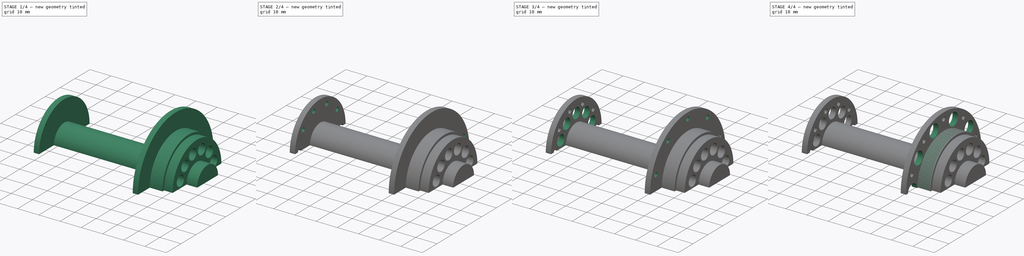
[diagram: build sequence overview — one tinted view per stage of 4, left to right]
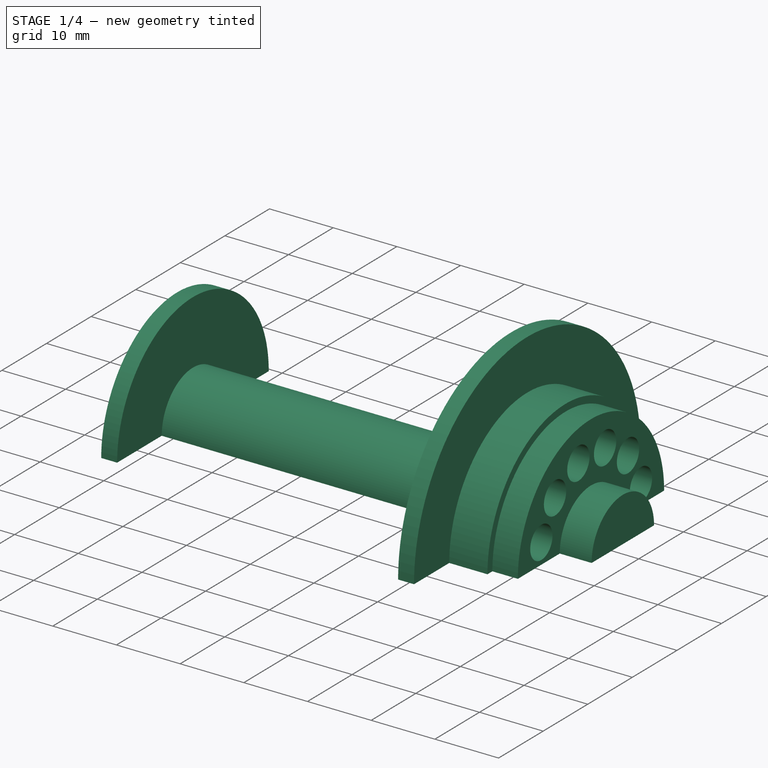
[diagram: stage 1 of 4 — iso view after this stage's code; geometry added in this stage tinted green]
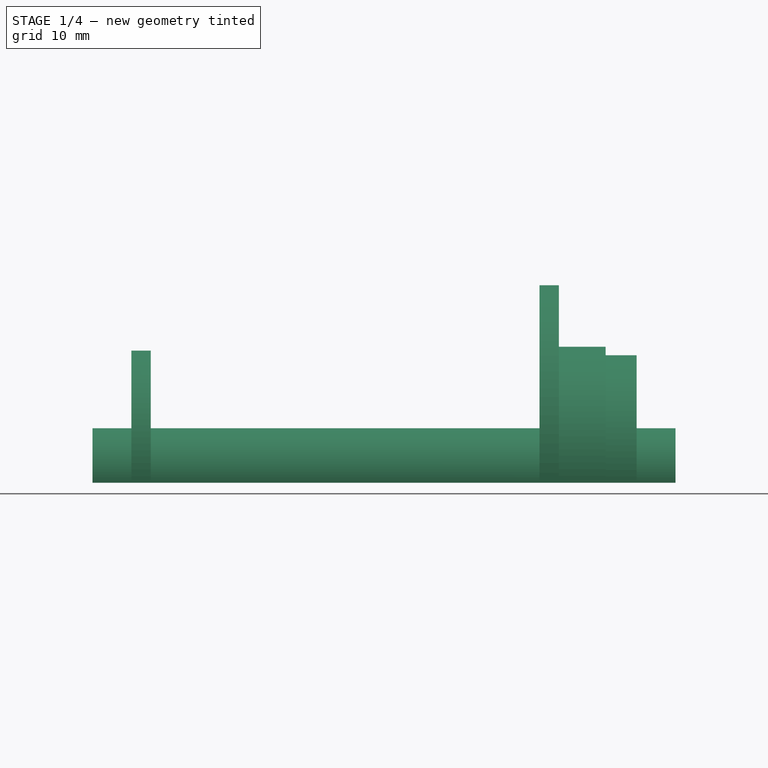
[diagram: stage 1 of 4 — front view after this stage's code; geometry added in this stage tinted green]
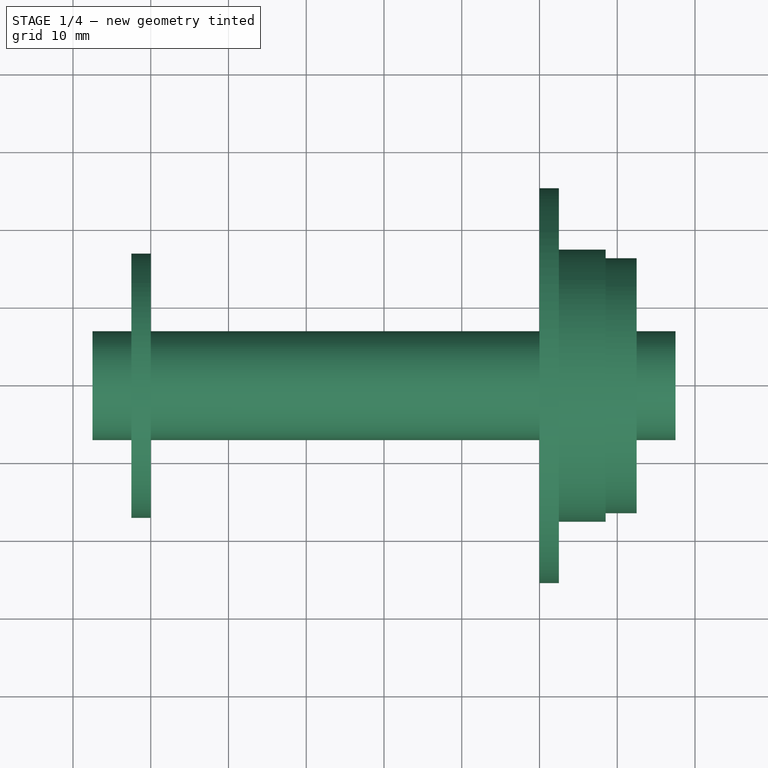
[diagram: stage 1 of 4 — top view after this stage's code; geometry added in this stage tinted green]
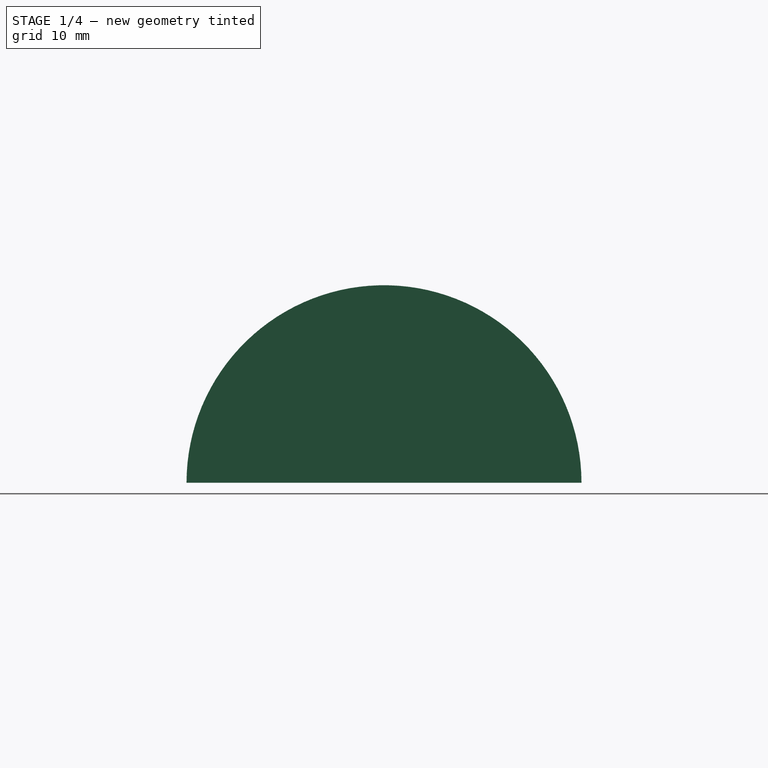
[diagram: stage 1 of 4 — right view after this stage's code; geometry added in this stage tinted green]
FCSTD DOCUMENT  (FreeCAD 0.16R)
Label: 75mmFixielite
License: All rights reserved
LicenseURL: http://en.wikipedia.org/wiki/All_rights_reserved
objects: Sketcher::SketchObject×7, PartDesign::Pocket×5, PartDesign::PolarPattern×5, PartDesign::Revolution×1, PartDesign::Groove×1, PartDesign::LinearPattern×1
note: 27 computed .brp shape members not serialized (recipe doc carries the construction recipe); baked Part::Feature solids carry a one-line shape summary decoded from their .brp

FEATURE [Sketcher::SketchObject] Sketch
  sketch-geometry (18):
    g0: LineSegment [constr] StartX=37.5 StartY=0 StartZ=0 EndX=37.5 EndY=-10 EndZ=0
    g1: LineSegment [constr] StartX=-37.5 StartY=0 StartZ=0 EndX=-37.5 EndY=-10 EndZ=0
    g2: LineSegment StartX=-37.5 StartY=0 StartZ=0 EndX=-37.5 EndY=7 EndZ=0
    g3: LineSegment StartX=-37.5 StartY=7 StartZ=0 EndX=-32.5 EndY=7 EndZ=0
    g4: LineSegment StartX=-32.5 StartY=7 StartZ=0 EndX=-32.5 EndY=17 EndZ=0
    g5: LineSegment StartX=-32.5 StartY=17 StartZ=0 EndX=-30 EndY=17 EndZ=0
    g6: LineSegment StartX=-30 StartY=17 StartZ=0 EndX=-30 EndY=7 EndZ=0
    g7: LineSegment StartX=-30 StartY=7 StartZ=0 EndX=20 EndY=7 EndZ=0
    g8: LineSegment StartX=20 StartY=7 StartZ=0 EndX=20 EndY=25.4 EndZ=0
    g9: LineSegment StartX=20 StartY=25.4 StartZ=0 EndX=22.5 EndY=25.4 EndZ=0
    g10: LineSegment StartX=22.5 StartY=25.4 StartZ=0 EndX=22.5 EndY=17.5 EndZ=0
    g11: LineSegment StartX=22.5 StartY=17.5 StartZ=0 EndX=28.5 EndY=17.5 EndZ=0
    g12: LineSegment StartX=28.5 StartY=17.5 StartZ=0 EndX=28.5 EndY=16.4 EndZ=0
    g13: LineSegment StartX=28.5 StartY=16.4 StartZ=0 EndX=32.5 EndY=16.4 EndZ=0
    g14: LineSegment StartX=32.5 StartY=16.4 StartZ=0 EndX=32.5 EndY=7 EndZ=0
    g15: LineSegment StartX=32.5 StartY=7 StartZ=0 EndX=37.5 EndY=7 EndZ=0
    g16: LineSegment StartX=37.5 StartY=7 StartZ=0 EndX=37.5 EndY=0 EndZ=0
    g17: LineSegment StartX=37.5 StartY=0 StartZ=0 EndX=-37.5 EndY=0 EndZ=0
  constraints (54):
    c: Vertical(g0)
    c: Vertical(g1)
    c: Distance(g0,g1) = 75
    c: PointOnObject(g1,g-1)
    c: PointOnObject(g0,g-1)
    c: Symmetric(g0,g1,g-1)
    c: Coincident(g2,g1)
    c: Coincident(g2,g3)
    c: Coincident(g3,g4)
    c: Vertical(g4)
    c: Coincident(g4,g5)
    c: Coincident(g5,g6)
    c: Vertical(g6)
    c: Coincident(g6,g7)
    c: Horizontal(g7)
    c: Coincident(g7,g8)
    c: Vertical(g8)
    c: Coincident(g8,g9)
    c: Coincident(g9,g10)
    c: Vertical(g10)
    c: Coincident(g10,g11)
    c: Horizontal(g11)
    c: Coincident(g11,g12)
    c: Coincident(g12,g13)
    c: Coincident(g13,g14)
    c: Vertical(g14)
    c: Coincident(g14,g15)
    c: Coincident(g15,g16)
    c: Coincident(g16,g0)
    c: Coincident(g16,g17)
    c: Coincident(g17,g1)
    c: Vertical(g2)
    c: Horizontal(g3)
    c: Distance(g3) = 5
    c: Distance(g2) = 7
    c: Distance(g4) = 10
    c: Horizontal(g5)
    c: Distance(g5) = 2.5
    c: DistanceY(g6) = 7
    c: Horizontal(g9)
    c: Distance(g9) = 2.5
    c: DistanceY(g11) = 17.5
    c: Distance(g11) = 6
    c: Vertical(g12)
    c: Horizontal(g13)
    c: DistanceY(g12) = 16.4
    c: Distance(g13) = 4
    c: Horizontal(g15)
    c: Distance(g15) = 5
    c: Vertical(g16)
    c: Distance(g1) = 10
    c: Distance(g0) = 10
    c: DistanceY(g8) = 25.4
    c: Distance(g16) = 7
FEATURE [PartDesign::Revolution] Revolution
  Angle = 180
  Axis = (1,0,0)
  Base = (0,0,0)
  ReferenceAxis = -> Sketch [H_Axis]
  Sketch = -> Sketch
FEATURE [Sketcher::SketchObject] Sketch001
  Placement = pos=(32.5,0,0) rot=(0.57735,0.57735,0.57735;2.0944rad)
  Support = -> Revolution [Face13]
  sketch-geometry (1):
    g0: Circle CenterX=-11.1288 CenterY=3.16636 CenterZ=0 NormalX=0 NormalY=0 NormalZ=1 Radius=2.5
  constraints (1):
    c: Radius(g0) = 2.5
FEATURE [PartDesign::Pocket] Pocket
  Length = 20
  Sketch = -> Sketch001
  Type = 0
FEATURE [PartDesign::PolarPattern] PolarPattern
  Angle = 150
  Axis = -> Sketch001 [N_Axis]
  Occurrences = 6
  Originals = -> [Pocket]
  Reversed = true
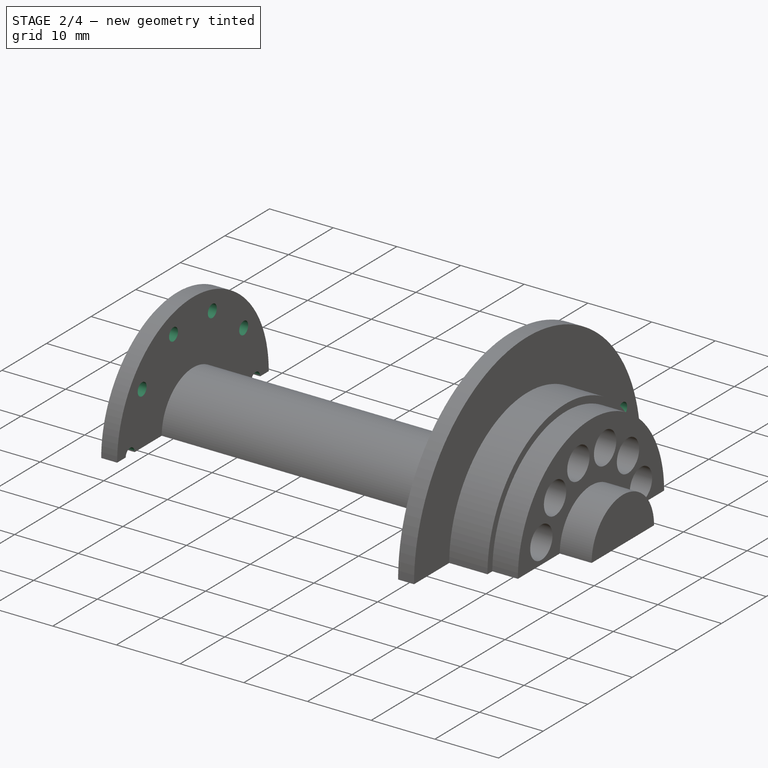
[diagram: stage 2 of 4 — iso view after this stage's code; geometry added in this stage tinted green]
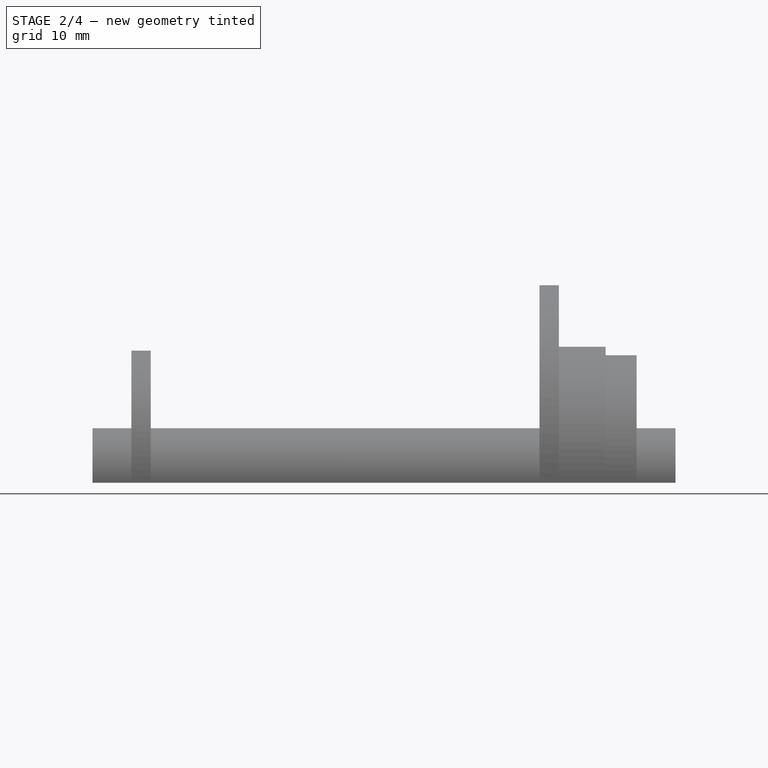
[diagram: stage 2 of 4 — front view after this stage's code; geometry added in this stage tinted green]
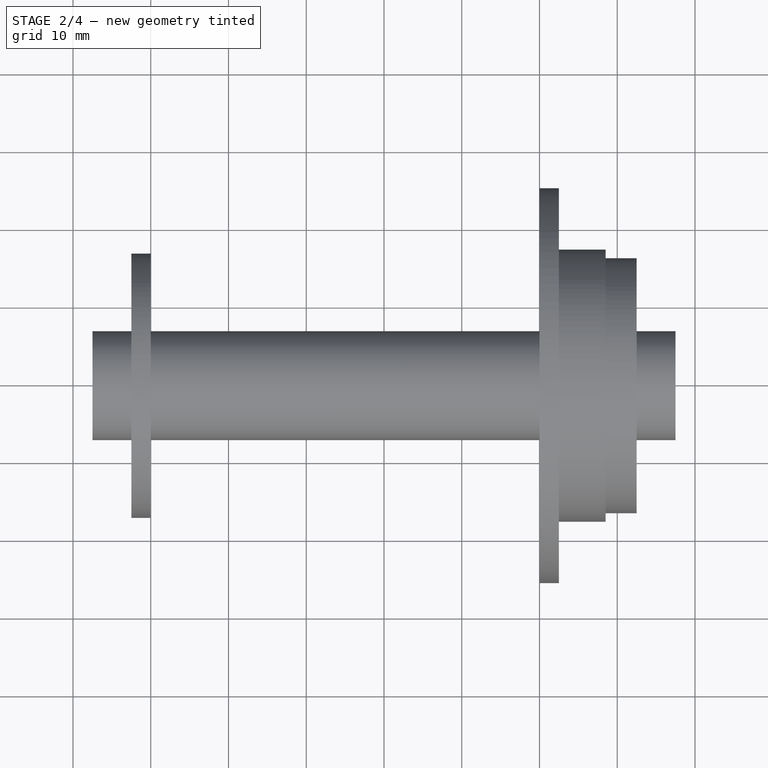
[diagram: stage 2 of 4 — top view after this stage's code; geometry added in this stage tinted green]
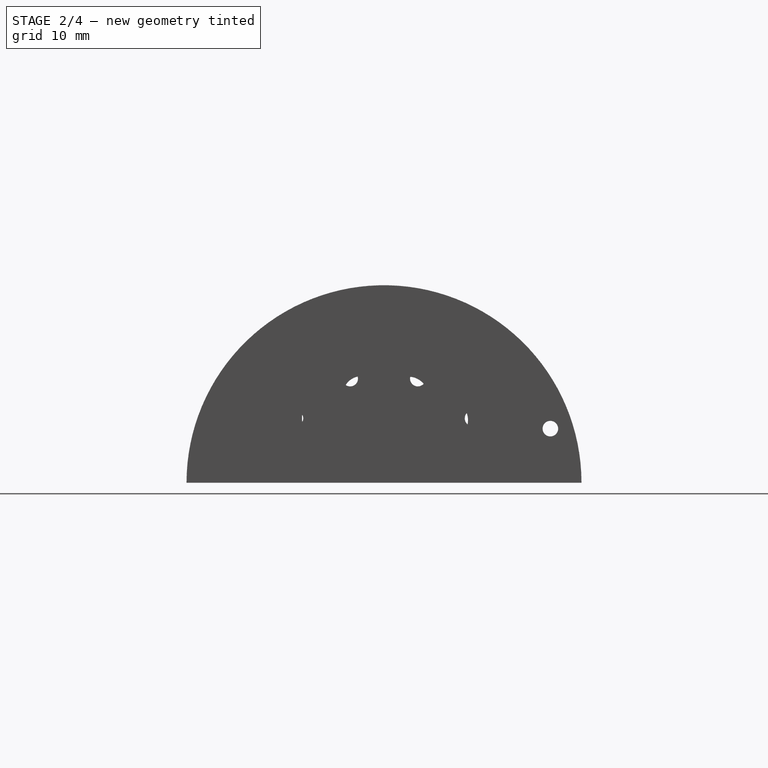
[diagram: stage 2 of 4 — right view after this stage's code; geometry added in this stage tinted green]
FEATURE [Sketcher::SketchObject] Sketch002
  Placement = pos=(-32.5,0,0) rot=(0.57735,-0.57735,-0.57735;2.0944rad)
  Support = -> PolarPattern [Face5]
  sketch-geometry (1):
    g0: Circle CenterX=-14.0773 CenterY=0 CenterZ=0 NormalX=0 NormalY=0 NormalZ=1 Radius=1
  constraints (2):
    c: Radius(g0) = 1
    c: PointOnObject(g0,g-1)
FEATURE [PartDesign::Pocket] Pocket001
  Length = 5
  Sketch = -> Sketch002
  Type = 0
FEATURE [PartDesign::PolarPattern] PolarPattern001
  Angle = 360
  Axis = -> Sketch002 [N_Axis]
  Occurrences = 10
  Originals = -> [Pocket001]
FEATURE [Sketcher::SketchObject] Sketch003
  Placement = pos=(20,0,0) rot=(0.57735,-0.57735,-0.57735;2.0944rad)
  Support = -> PolarPattern001 [Face14]
  sketch-geometry (2):
    g0: Circle CenterX=-21.3988 CenterY=6.95288 CenterZ=0 NormalX=0 NormalY=0 NormalZ=1 Radius=1
    g1: LineSegment [constr] StartX=-21.3988 StartY=6.95288 StartZ=0 EndX=0 EndY=0 EndZ=0
  constraints (5):
    c: Radius(g0) = 1
    c: Coincident(g1,g0)
    c: Angle(g1) = -0.314159
    c: Coincident(g1,g-1)
    c: Distance(g1) = 22.5
FEATURE [PartDesign::Pocket] Pocket002
  Length = 5
  Sketch = -> Sketch003
  Type = 0
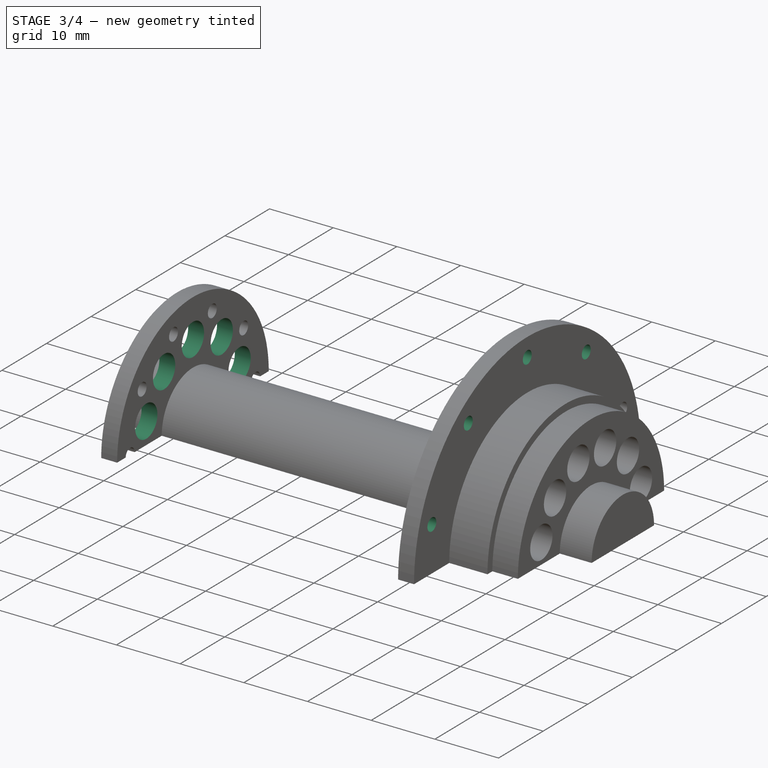
[diagram: stage 3 of 4 — iso view after this stage's code; geometry added in this stage tinted green]
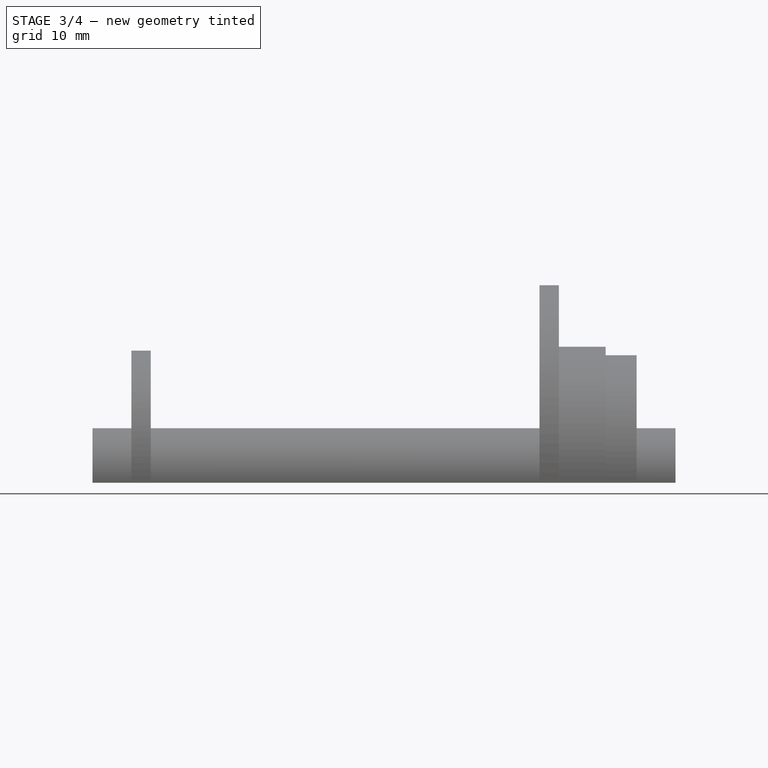
[diagram: stage 3 of 4 — front view after this stage's code; geometry added in this stage tinted green]
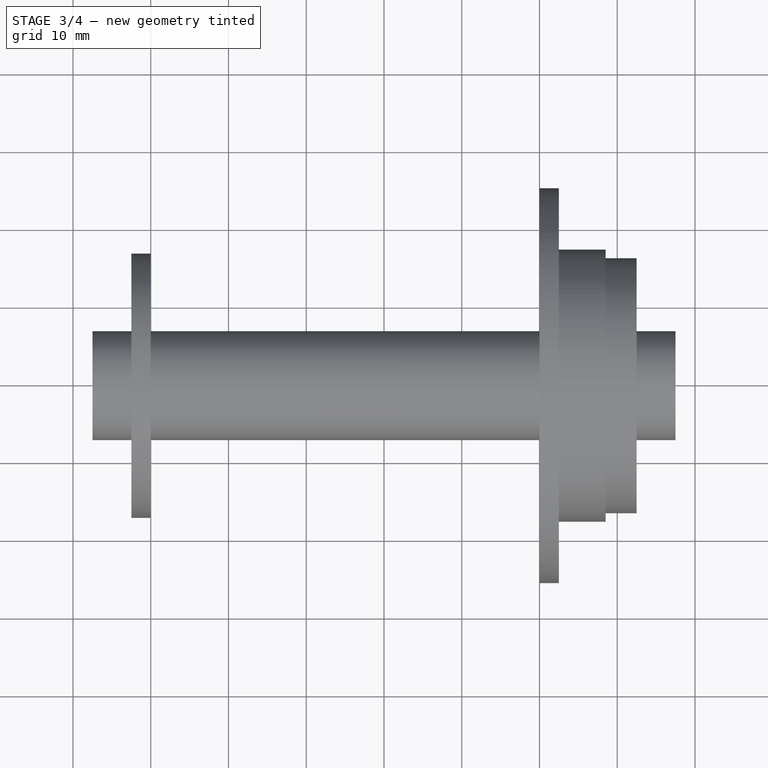
[diagram: stage 3 of 4 — top view after this stage's code; geometry added in this stage tinted green]
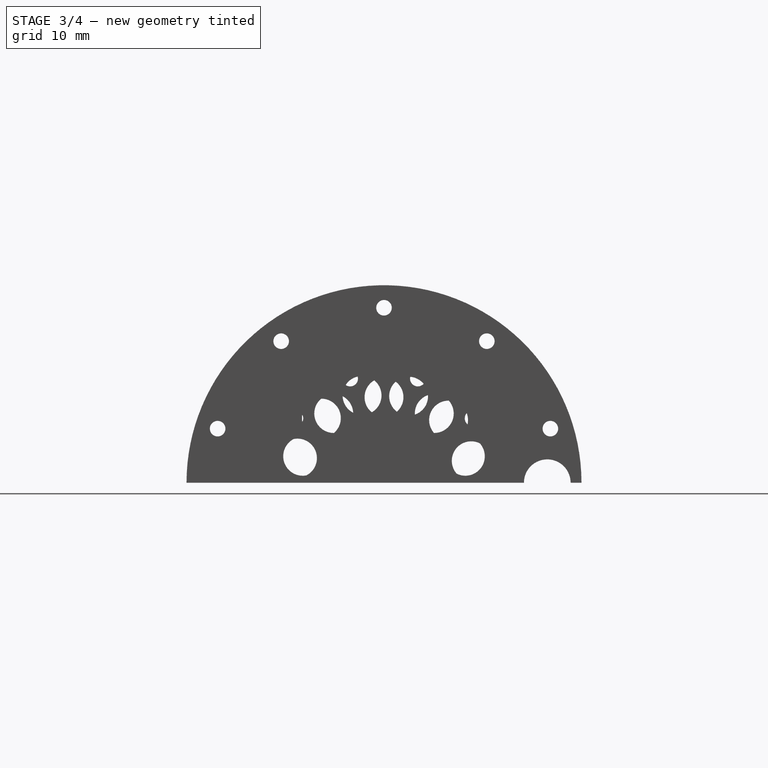
[diagram: stage 3 of 4 — right view after this stage's code; geometry added in this stage tinted green]
FEATURE [PartDesign::PolarPattern] PolarPattern002
  Angle = 360
  Axis = -> Sketch003 [N_Axis]
  Occurrences = 10
  Originals = -> [Pocket002]
FEATURE [Sketcher::SketchObject] Sketch004
  Placement = pos=(-32.5,0,0) rot=(0.57735,-0.57735,-0.57735;2.0944rad)
  Support = -> PolarPattern002 [Face5]
  sketch-geometry (2):
    g0: Circle CenterX=-10.4616 CenterY=3.39919 CenterZ=0 NormalX=0 NormalY=0 NormalZ=1 Radius=2.5
    g1: LineSegment [constr] StartX=-10.4616 StartY=3.39919 StartZ=0 EndX=0 EndY=0 EndZ=0
  constraints (5):
    c: Radius(g0) = 2.5
    c: Coincident(g1,g0)
    c: Coincident(g1,g-1)
    c: Angle(g1) = -0.314159
    c: Distance(g1) = 11
FEATURE [PartDesign::Pocket] Pocket003
  Length = 5
  Sketch = -> Sketch004
  Type = 0
FEATURE [PartDesign::PolarPattern] PolarPattern003
  Angle = 360
  Axis = -> Sketch004 [N_Axis]
  Occurrences = 10
  Originals = -> [Pocket003]
FEATURE [Sketcher::SketchObject] Sketch005
  Placement = pos=(20,0,0) rot=(0.57735,-0.57735,-0.57735;2.0944rad)
  Support = -> PolarPattern003 [Face14]
  sketch-geometry (1):
    g0: Circle CenterX=-21 CenterY=0 CenterZ=0 NormalX=0 NormalY=0 NormalZ=1 Radius=3
  constraints (3):
    c: Radius(g0) = 3
    c: PointOnObject(g0,g-1)
    c: DistanceX(g0) = -21
FEATURE [PartDesign::Pocket] Pocket004
  Length = 5
  Sketch = -> Sketch005
  Type = 0
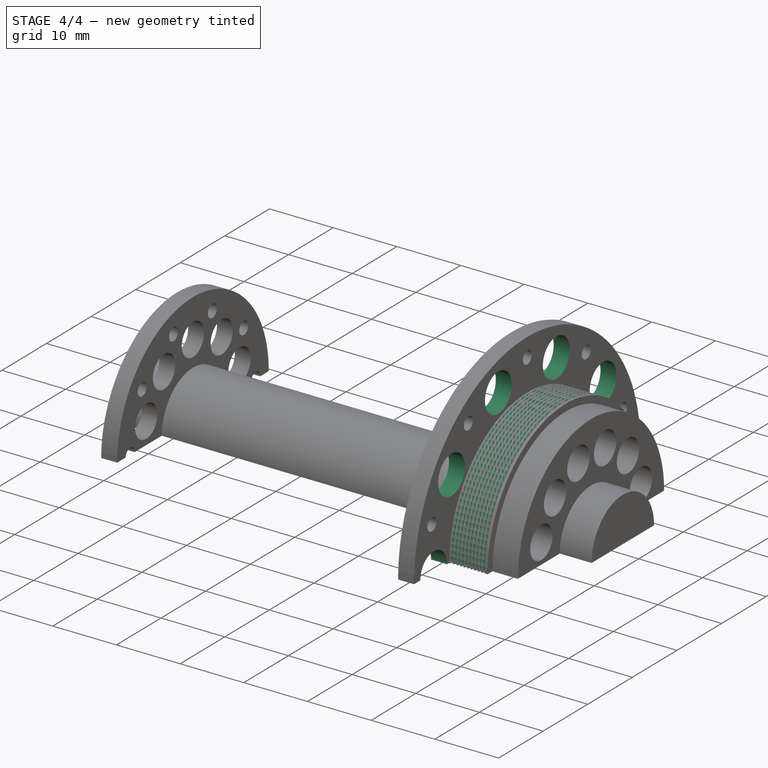
[diagram: stage 4 of 4 — iso view after this stage's code; geometry added in this stage tinted green]
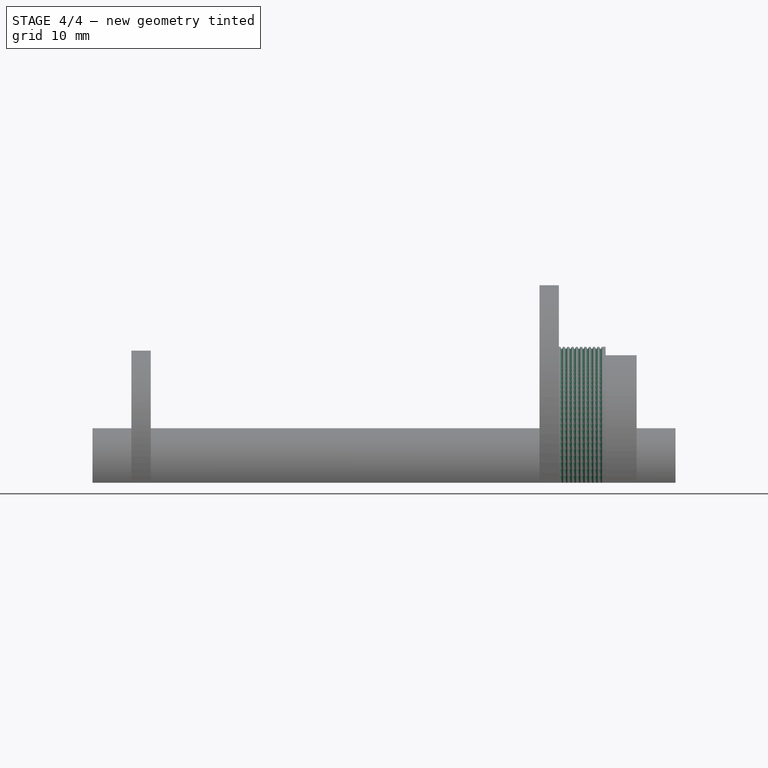
[diagram: stage 4 of 4 — front view after this stage's code; geometry added in this stage tinted green]
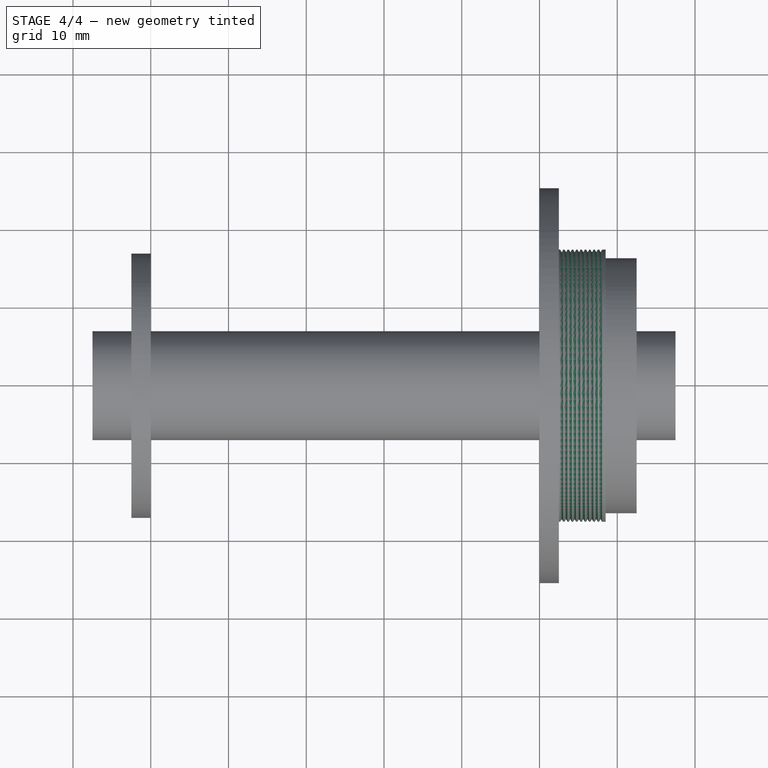
[diagram: stage 4 of 4 — top view after this stage's code; geometry added in this stage tinted green]
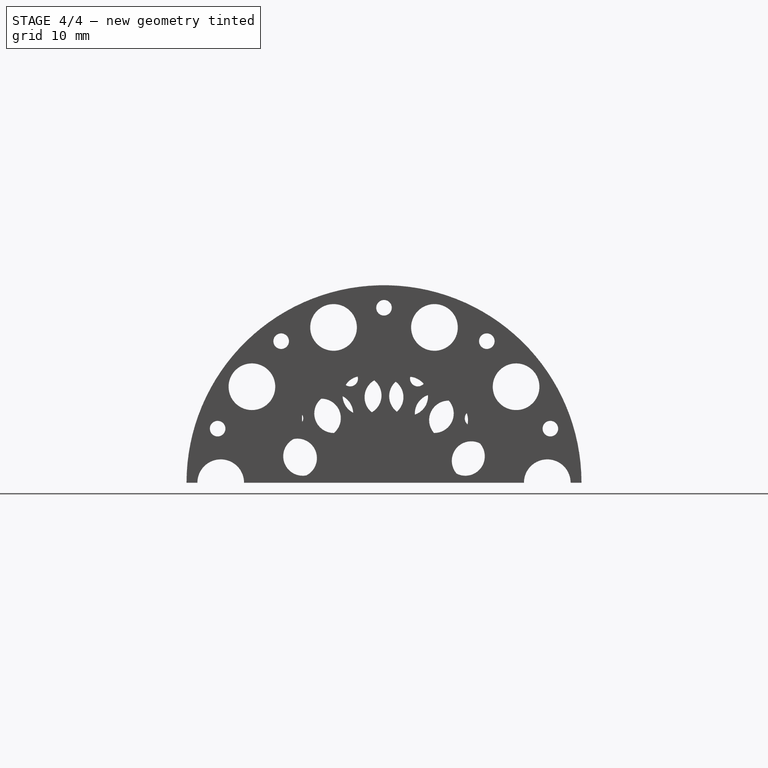
[diagram: stage 4 of 4 — right view after this stage's code; geometry added in this stage tinted green]
FEATURE [PartDesign::PolarPattern] PolarPattern004
  Angle = 360
  Axis = -> Sketch005 [N_Axis]
  Occurrences = 10
  Originals = -> [Pocket004]
FEATURE [Sketcher::SketchObject] Sketch006
  Placement = pos=(0,0,0) rot=(1,0,0;3.14159rad)
  Support = -> PolarPattern004 [Face3]
  sketch-geometry (5):
    g0: LineSegment StartX=22.5861 StartY=17.6331 StartZ=0 EndX=22.8577 EndY=17.1627 EndZ=0
    g1: LineSegment StartX=22.8577 StartY=17.1627 StartZ=0 EndX=23.1095 EndY=17.5988 EndZ=0
    g2: LineSegment StartX=23.1095 StartY=17.5988 StartZ=0 EndX=23.1095 EndY=18.3359 EndZ=0
    g3: LineSegment StartX=23.1095 StartY=18.3359 StartZ=0 EndX=22.6034 EndY=18.3359 EndZ=0
    g4: LineSegment StartX=22.6034 StartY=18.3359 StartZ=0 EndX=22.5861 EndY=17.6331 EndZ=0
  constraints (9):
    c: Coincident(g0,g1)
    c: Vertical(g2)
    c: Coincident(g2,g3)
    c: Horizontal(g3)
    c: Coincident(g3,g4)
    c: Coincident(g4,g0)
    c: Angle(g1) = 1.0472
    c: Coincident(g2,g1)
    c: Angle(g0) = -1.0472
FEATURE [PartDesign::Groove] Groove
  Angle = 360
  Axis = (1,0,0)
  Base = (0,0,0)
  ReferenceAxis = -> Sketch006 [H_Axis]
  Reversed = true
  Sketch = -> Sketch006
FEATURE [PartDesign::LinearPattern] LinearPattern
  Direction = -> Sketch006 [H_Axis]
  Length = 5
  Occurrences = 10
  Originals = -> [Groove]
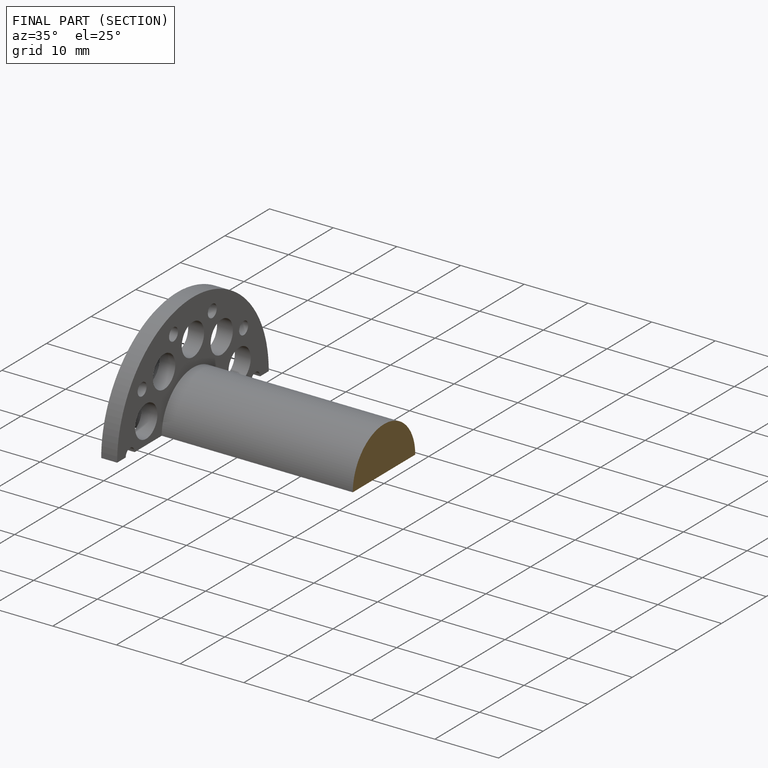
[diagram: finished part — half-section view (interior)]
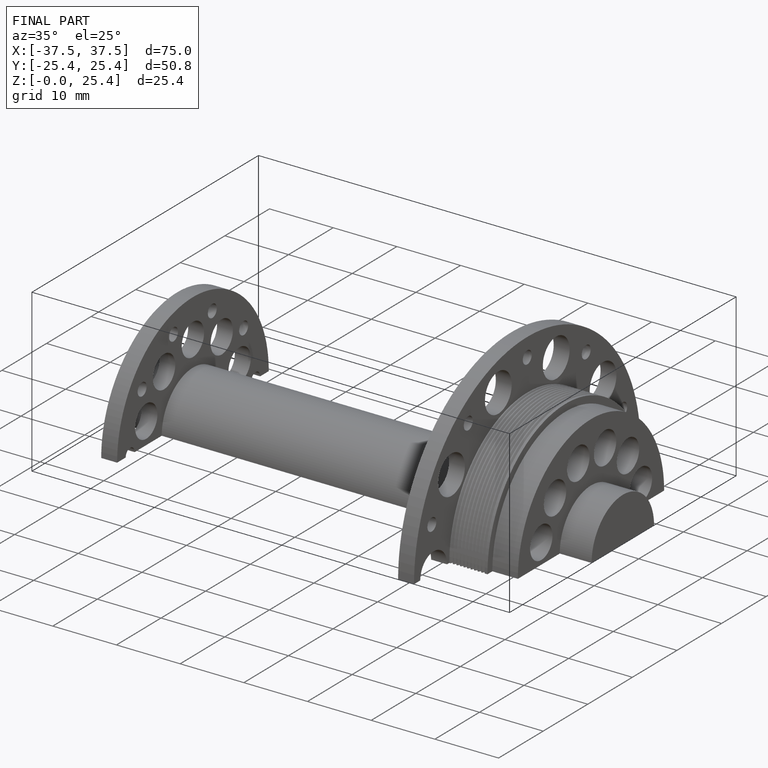
[diagram: finished part — iso view with bounding-box wireframe]
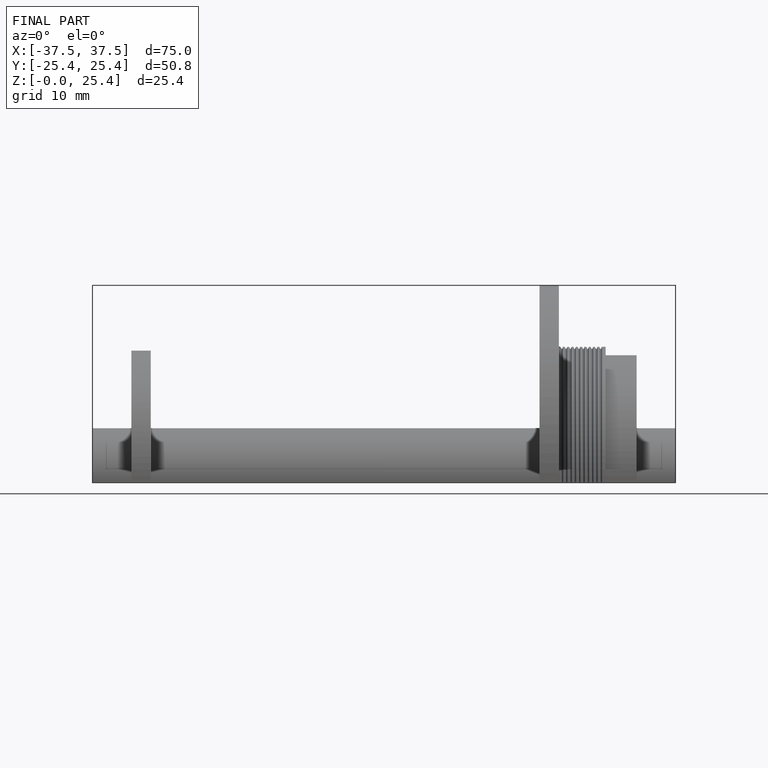
[diagram: finished part — front view with bounding-box wireframe]
